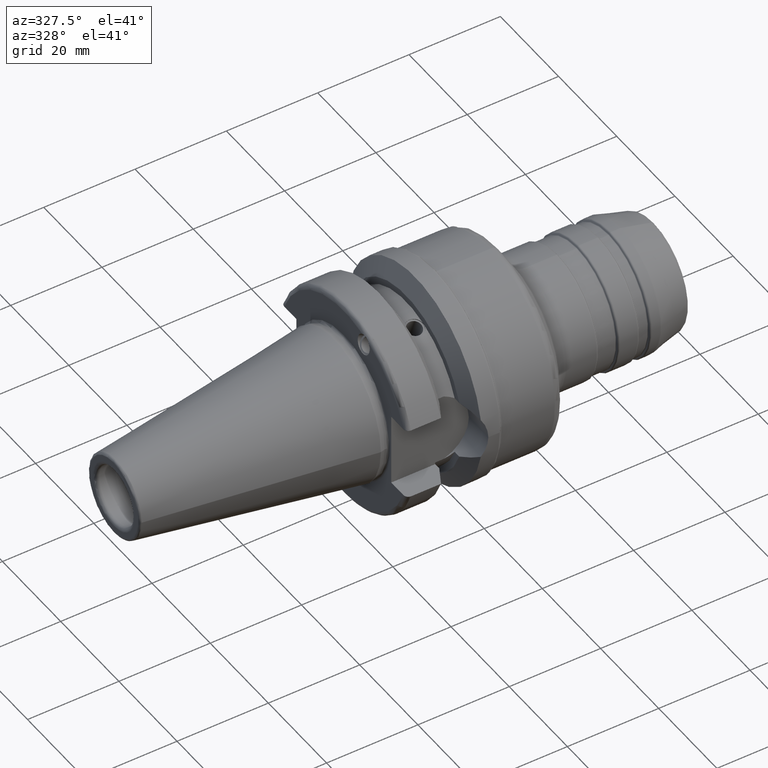
[diagram: clean part render]
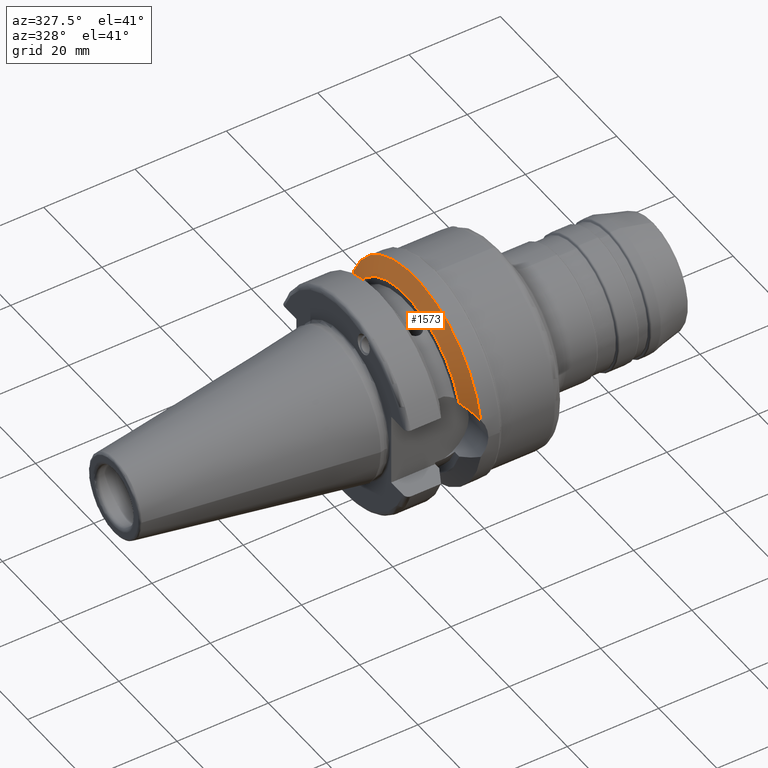
[diagram: same view with one face highlighted and labeled with its STEP entity id]
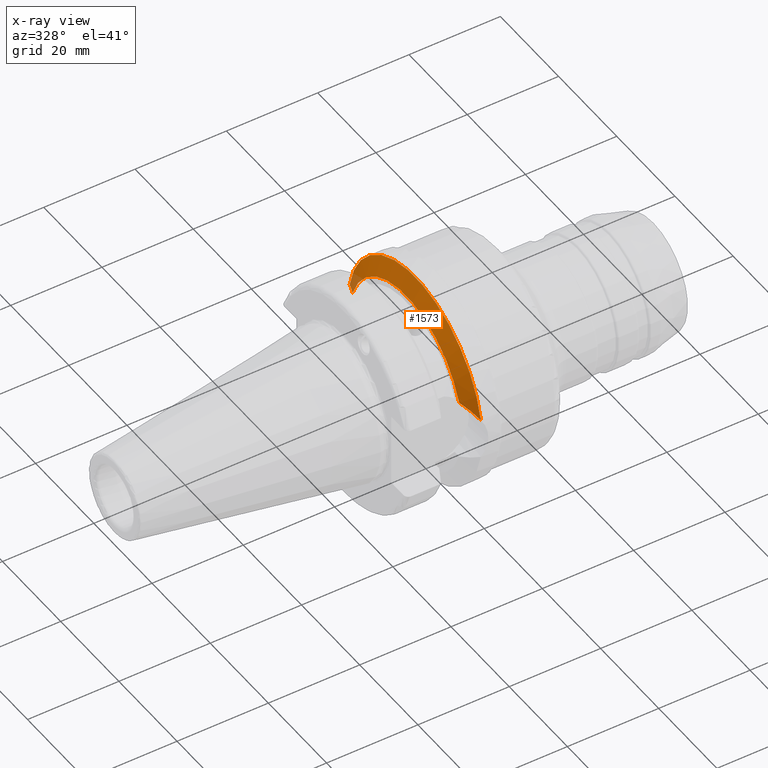
[diagram: x-ray of the same camera — body ghosted, the highlighted face saturated]
A machine part, auxiliary view. The second image highlights one B-rep face of the part: STEP entity #1573.
The next image is the same camera in x-ray: the body ghosted, the highlighted face saturated — about 3% of this face is hidden behind the body in this view.
In plain terms, the highlighted conical surface has half-angle 60.125 deg.
Its self-contained STEP definition (entity closure, byte-faithful):
#62=B_SPLINE_CURVE_WITH_KNOTS('',3,(#2936,#2937,#2938,#2939,#2940,#2941),
 .UNSPECIFIED.,.F.,.F.,(4,2,4),(9.25978800315029,9.40675815006574,9.7527233553007),
 .UNSPECIFIED.);
#69=B_SPLINE_CURVE_WITH_KNOTS('',3,(#3055,#3056,#3057,#3058,#3059,#3060),
 .UNSPECIFIED.,.F.,.F.,(4,2,4),(1.87172696882225,2.21769217405721,2.36466232097266),
 .UNSPECIFIED.);
#113=CONICAL_SURFACE('',#1799,21.2331286619655,1.04937921276159);
#385=FACE_OUTER_BOUND('',#489,.T.);
#489=EDGE_LOOP('',(#1399,#1400,#1401,#1402));
#587=CIRCLE('',#1778,23.);
#596=CIRCLE('',#1800,19.466257323931);
#727=VERTEX_POINT('',#2928);
#728=VERTEX_POINT('',#2935);
#735=VERTEX_POINT('',#2979);
#747=VERTEX_POINT('',#3053);
#930=EDGE_CURVE('',#727,#728,#62,.T.);
#946=EDGE_CURVE('',#735,#727,#587,.T.);
#968=EDGE_CURVE('',#747,#735,#69,.T.);
#974=EDGE_CURVE('',#747,#728,#596,.T.);
#1399=ORIENTED_EDGE('',*,*,#930,.F.);
#1400=ORIENTED_EDGE('',*,*,#946,.F.);
#1401=ORIENTED_EDGE('',*,*,#968,.F.);
#1402=ORIENTED_EDGE('',*,*,#974,.T.);
#1573=ADVANCED_FACE('',(#385),#113,.T.);
#1778=AXIS2_PLACEMENT_3D('',#2990,#2225,#2226);
#1799=AXIS2_PLACEMENT_3D('',#3072,#2279,#2280);
#1800=AXIS2_PLACEMENT_3D('',#3073,#2281,#2282);
#2225=DIRECTION('center_axis',(1.,1.62798202122572E-21,0.));
#2226=DIRECTION('ref_axis',(0.,0.,-1.));
#2279=DIRECTION('center_axis',(1.,1.62798202122572E-21,0.));
#2280=DIRECTION('ref_axis',(0.,1.,0.));
#2281=DIRECTION('center_axis',(1.,1.62798202122572E-21,0.));
#2282=DIRECTION('ref_axis',(0.,0.,-1.));
#2928=CARTESIAN_POINT('',(17.6299409595063,-22.5570191120744,4.49231441213885));
#2935=CARTESIAN_POINT('',(15.6,-18.3236233917175,6.57114906237867));
#2936=CARTESIAN_POINT('Ctrl Pts',(17.6299409595063,-22.5570191120744,4.49231441213885));
#2937=CARTESIAN_POINT('Ctrl Pts',(17.4363948664282,-22.1561594342104,4.78011182703289));
#2938=CARTESIAN_POINT('Ctrl Pts',(17.2377433516599,-21.7440485808551,5.03500381733927));
#2939=CARTESIAN_POINT('Ctrl Pts',(16.6013448473778,-20.4213600687136,5.77346727707879));
#2940=CARTESIAN_POINT('Ctrl Pts',(16.1098572405085,-19.3959223553921,6.21035429941431));
#2941=CARTESIAN_POINT('Ctrl Pts',(15.6,-18.3236233917175,6.57114906237867));
#2979=CARTESIAN_POINT('',(17.6299409595063,22.5570191120744,4.49231441213885));
#2990=CARTESIAN_POINT('Origin',(17.6299409595063,2.08176427085476E-15,0.));
#3053=CARTESIAN_POINT('',(15.6,18.3236233917175,6.57114906237867));
#3055=CARTESIAN_POINT('Ctrl Pts',(15.6,18.3236233917175,6.57114906237867));
#3056=CARTESIAN_POINT('Ctrl Pts',(16.1098572405085,19.3959223553921,6.21035429941431));
#3057=CARTESIAN_POINT('Ctrl Pts',(16.6013448473778,20.4213600687136,5.77346727707879));
#3058=CARTESIAN_POINT('Ctrl Pts',(17.2377433516599,21.744048580855,5.03500381733928));
#3059=CARTESIAN_POINT('Ctrl Pts',(17.4363948664282,22.1561594342104,4.78011182703289));
#3060=CARTESIAN_POINT('Ctrl Pts',(17.6299409595063,22.5570191120744,4.49231441213885));
#3072=CARTESIAN_POINT('Origin',(16.6149704797531,2.08176261850107E-15,0.));
#3073=CARTESIAN_POINT('Origin',(15.6,2.08176096614738E-15,0.));